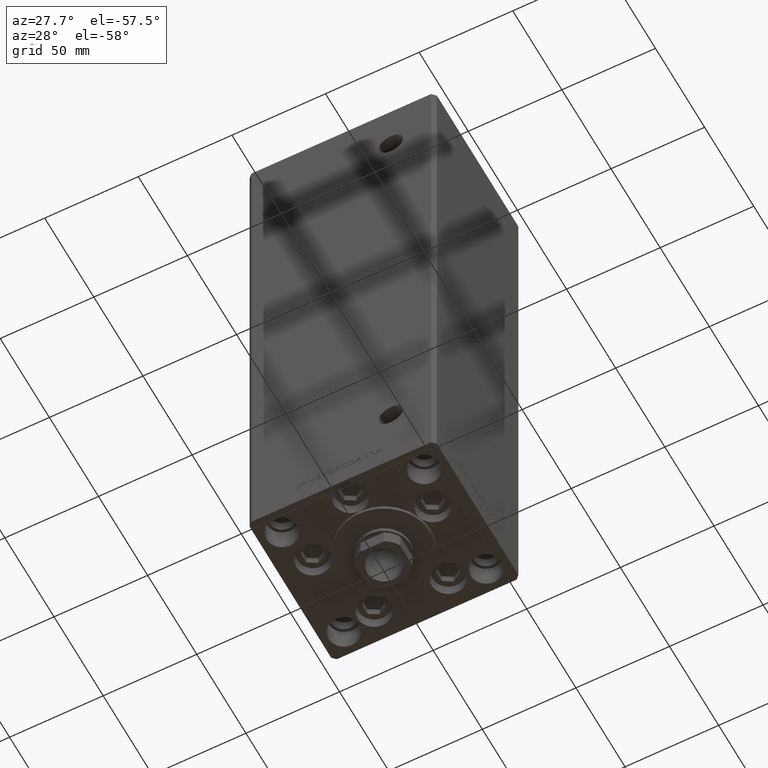
[diagram: clean part render]
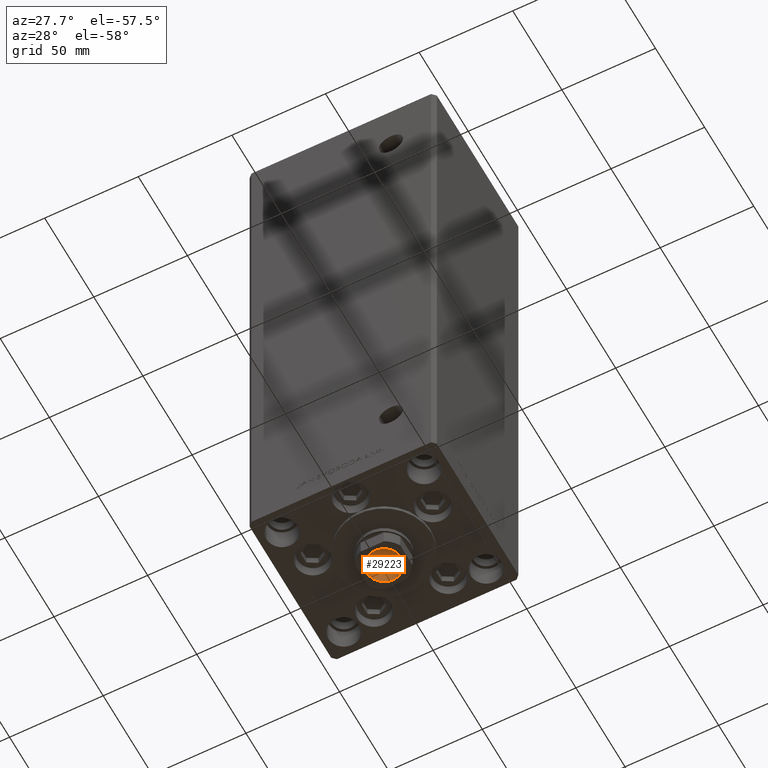
[diagram: same view with one face highlighted and labeled with its STEP entity id]
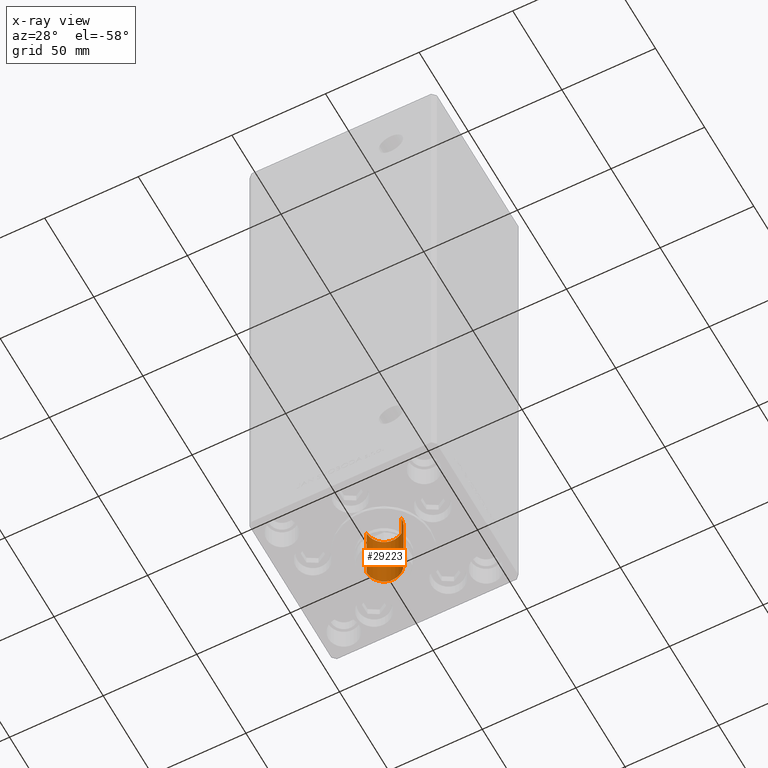
[diagram: x-ray of the same camera — body ghosted, the highlighted face saturated]
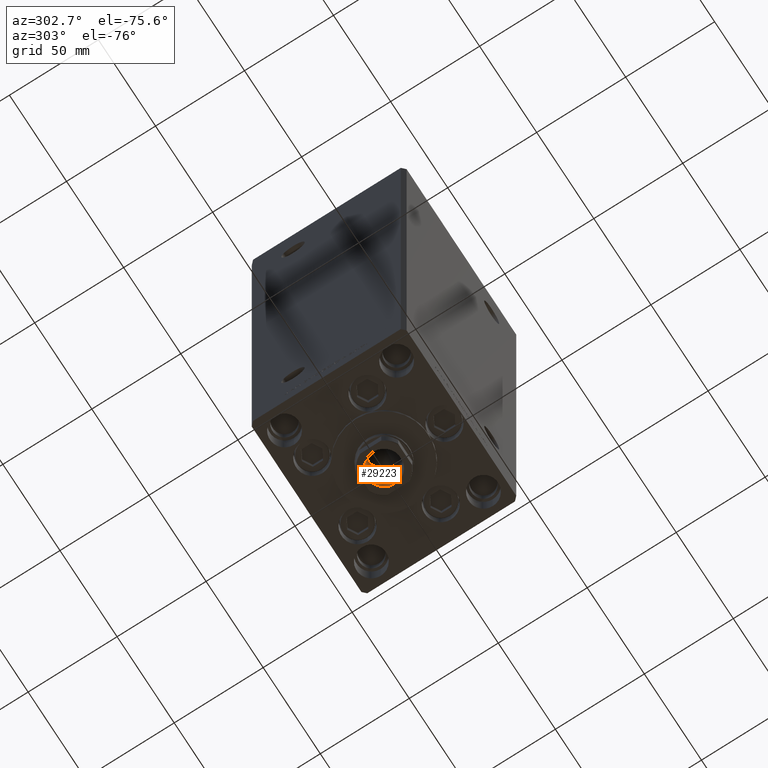
[diagram: same view with one face highlighted and labeled with its STEP entity id]
A machine part, auxiliary view. The second image highlights one B-rep face of the part: STEP entity #29223.
The next image is the same camera in x-ray: the body ghosted, the highlighted face saturated — about 0% of this face is hidden behind the body in this view.
A second angle (auxiliary view) of the same face is appended — the face is thin or edge-on in the first view.
In plain terms, the highlighted cylindrical surface (edge-blend (fillet) strip) has radius 9.25 mm, axis along (0, 0, -1).
Its self-contained STEP definition (entity closure, byte-faithful):
#251 = DIRECTION ( 'NONE',  ( -0.000000000000000000, -0.000000000000000000, 1.000000000000000000 ) ) ;
#505 = CARTESIAN_POINT ( 'NONE',  ( 0.000000000000000000, 0.000000000000000000, 250.2499999999999716 ) ) ;
#4536 = DIRECTION ( 'NONE',  ( 1.000000000000000000, 0.000000000000000000, 0.000000000000000000 ) ) ;
#7946 = CYLINDRICAL_SURFACE ( 'NONE', #23105, 9.249999999999996447 ) ;
#10483 = LINE ( 'NONE', #25916, #45328 ) ;
#15546 = DIRECTION ( 'NONE',  ( -0.000000000000000000, -0.000000000000000000, 1.000000000000000000 ) ) ;
#16130 = VERTEX_POINT ( 'NONE', #36947 ) ;
#16227 = CARTESIAN_POINT ( 'NONE',  ( -9.249999999999994671, 1.132798289211300909E-15, 250.2499999999999716 ) ) ;
#18126 = DIRECTION ( 'NONE',  ( -0.000000000000000000, -0.000000000000000000, 1.000000000000000000 ) ) ;
#18162 = DIRECTION ( 'NONE',  ( 1.000000000000000000, 0.000000000000000000, 0.000000000000000000 ) ) ;
#18409 = CARTESIAN_POINT ( 'NONE',  ( 0.000000000000000000, 0.000000000000000000, 284.9499999999999886 ) ) ;
#18598 = DIRECTION ( 'NONE',  ( 1.000000000000000000, 0.000000000000000000, 0.000000000000000000 ) ) ;
#20401 = VERTEX_POINT ( 'NONE', #16227 ) ;
#20646 = CARTESIAN_POINT ( 'NONE',  ( 9.249999999999994671, 0.000000000000000000, 250.2499999999999716 ) ) ;
#21563 = ORIENTED_EDGE ( 'NONE', *, *, #34477, .F. ) ;
#21876 = CIRCLE ( 'NONE', #38869, 9.249999999999996447 ) ;
#22616 = DIRECTION ( 'NONE',  ( -0.000000000000000000, -0.000000000000000000, 1.000000000000000000 ) ) ;
#22799 = ORIENTED_EDGE ( 'NONE', *, *, #43090, .T. ) ;
#23105 = AXIS2_PLACEMENT_3D ( 'NONE', #46474, #15546, #18598 ) ;
#23281 = AXIS2_PLACEMENT_3D ( 'NONE', #505, #251, #4536 ) ;
#24104 = CIRCLE ( 'NONE', #23281, 9.249999999999994671 ) ;
#24507 = CARTESIAN_POINT ( 'NONE',  ( 9.249999999999996447, 0.000000000000000000, 284.9499999999999886 ) ) ;
#24907 = EDGE_LOOP ( 'NONE', ( #36382, #21563, #41736, #22799 ) ) ;
#25916 = CARTESIAN_POINT ( 'NONE',  ( 9.249999999999996447, 0.000000000000000000, 285.2500000000000000 ) ) ;
#25996 = DIRECTION ( 'NONE',  ( 0.000000000000000000, 0.000000000000000000, 1.000000000000000000 ) ) ;
#27714 = VERTEX_POINT ( 'NONE', #24507 ) ;
#29223 = ADVANCED_FACE ( 'NONE', ( #45481 ), #7946, .F. ) ;
#30264 = LINE ( 'NONE', #45495, #35648 ) ;
#34477 = EDGE_CURVE ( 'NONE', #38499, #20401, #24104, .T. ) ;
#35648 = VECTOR ( 'NONE', #18126, 1000.000000000000000 ) ;
#36382 = ORIENTED_EDGE ( 'NONE', *, *, #46873, .F. ) ;
#36947 = CARTESIAN_POINT ( 'NONE',  ( -9.249999999999996447, 1.132798289211301304E-15, 284.9499999999999886 ) ) ;
#38499 = VERTEX_POINT ( 'NONE', #20646 ) ;
#38869 = AXIS2_PLACEMENT_3D ( 'NONE', #18409, #25996, #18162 ) ;
#41323 = EDGE_CURVE ( 'NONE', #38499, #27714, #10483, .T. ) ;
#41736 = ORIENTED_EDGE ( 'NONE', *, *, #41323, .T. ) ;
#43090 = EDGE_CURVE ( 'NONE', #27714, #16130, #21876, .T. ) ;
#45328 = VECTOR ( 'NONE', #22616, 1000.000000000000000 ) ;
#45481 = FACE_OUTER_BOUND ( 'NONE', #24907, .T. ) ;
#45495 = CARTESIAN_POINT ( 'NONE',  ( -9.249999999999996447, 1.132798289211301304E-15, 285.2500000000000000 ) ) ;
#46474 = CARTESIAN_POINT ( 'NONE',  ( 0.000000000000000000, 0.000000000000000000, 285.2500000000000000 ) ) ;
#46873 = EDGE_CURVE ( 'NONE', #20401, #16130, #30264, .T. ) ;